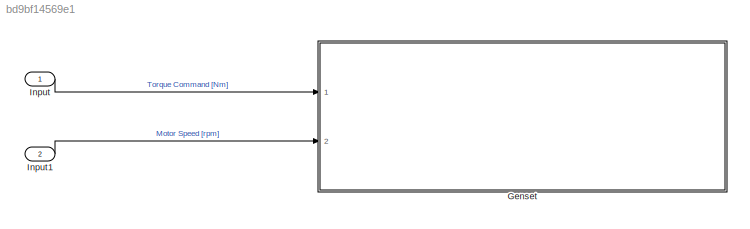
MODEL slx_bd9bf14569e1
KIND model
CONFIG AbsTol = auto
CONFIG EnableMultiTasking = off
CONFIG FixedStep = auto
CONFIG MaxStep = auto
CONFIG MinStep = auto
CONFIG RelTol = 1e-3
CONFIG SampleTimeConstraint = Unconstrained
CONFIG Solver = VariableStepAuto
CONFIG SolverName = VariableStepAuto
CONFIG StartTime = 0.0
CONFIG StopTime = tEnd
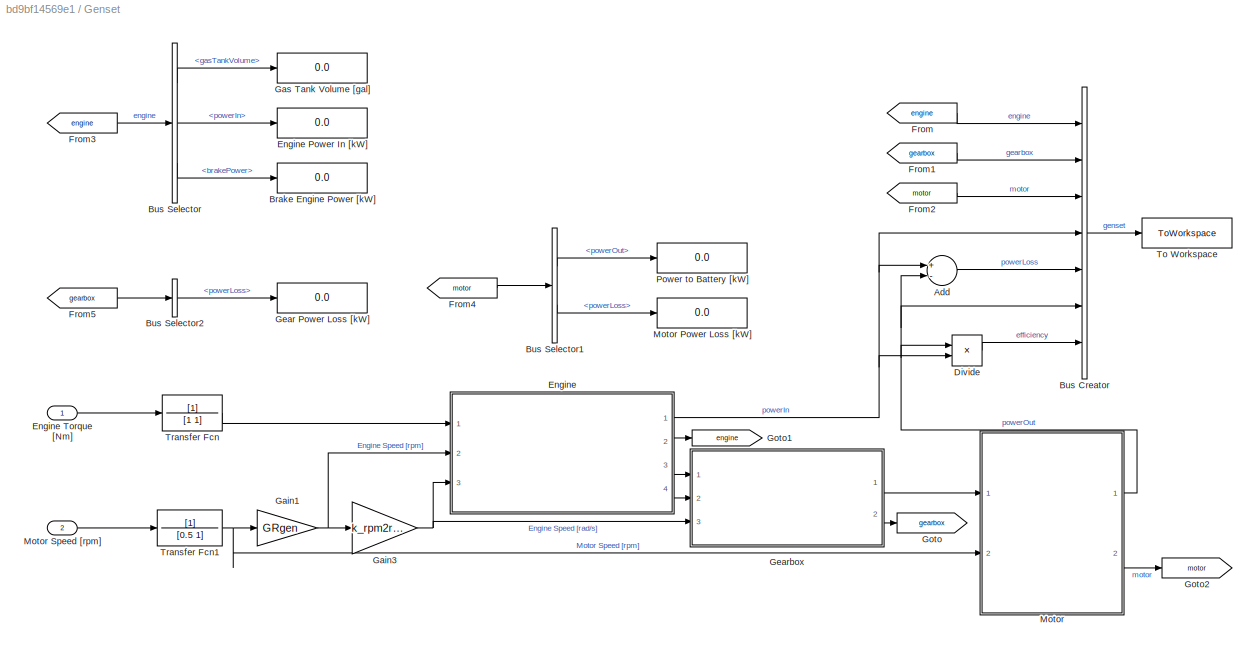
BLOCK [SubSystem] Genset
  Ports = [2]
  RequestExecContextInheritance = off
BLOCK [Sum] Genset/Add
  InputSameDT = off
  Inputs = +-
  OutDataTypeStr = Inherit: Inherit via internal rule
  Ports = [2, 1]
  SaturateOnIntegerOverflow = off
BLOCK [Display] Genset/Brake Engine Power [kW]
  Decimation = 1
  Ports = [1]
BLOCK [BusCreator] Genset/Bus Creator
  DisplayOption = bar
  InheritFromInputs = on
  Inputs = 7
  Ports = [7, 1]
BLOCK [BusSelector] Genset/Bus Selector
  OutputAsBus = off
  OutputSignals = gasTankVolume,powerIn,brakePower
  Ports = [1, 3]
BLOCK [BusSelector] Genset/Bus Selector1
  OutputAsBus = off
  OutputSignals = powerOut,powerLoss
  Ports = [1, 2]
BLOCK [BusSelector] Genset/Bus Selector2
  OutputAsBus = off
  OutputSignals = powerLoss
  Ports = [1, 1]
BLOCK [Product] Genset/Divide
  InputSameDT = off
  Inputs = */
  OutDataTypeStr = Inherit: Inherit via internal rule
  Ports = [2, 1]
  RndMeth = Floor
  SaturateOnIntegerOverflow = off
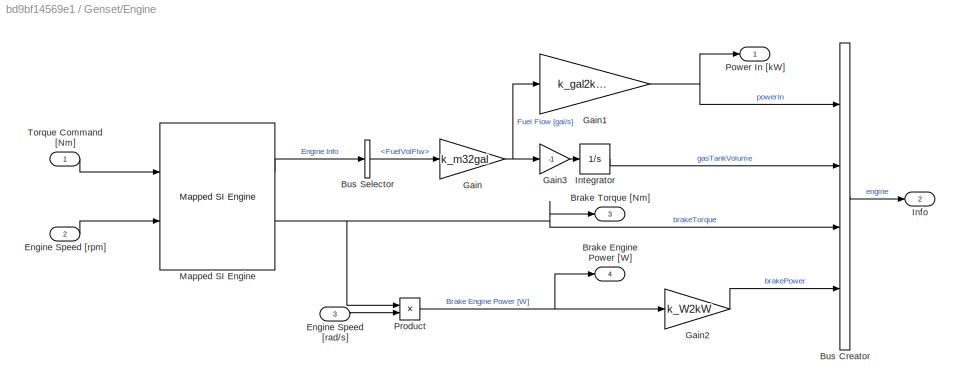
BLOCK [SubSystem] Genset/Engine
  Ports = [3, 4]
  RequestExecContextInheritance = off
BLOCK [Display] Genset/Engine Power In [kW]
  Decimation = 1
  Ports = [1]
BLOCK [Inport] Genset/Engine Torque [Nm]
  IconDisplay = Port number
BLOCK [Outport] Genset/Engine/Brake Engine Power [W]
  IconDisplay = Port number
  Port = 4
BLOCK [Outport] Genset/Engine/Brake Torque [Nm]
  IconDisplay = Port number
  Port = 3
BLOCK [BusCreator] Genset/Engine/Bus Creator
  DisplayOption = bar
  InheritFromInputs = on
  Inputs = 4
  Ports = [4, 1]
BLOCK [BusSelector] Genset/Engine/Bus Selector
  OutputAsBus = off
  OutputSignals = FuelVolFlw
  Ports = [1, 1]
BLOCK [Inport] Genset/Engine/Engine Speed [rad//s]
  IconDisplay = Port number
  Port = 3
BLOCK [Inport] Genset/Engine/Engine Speed [rpm]
  IconDisplay = Port number
  Port = 2
BLOCK [Gain] Genset/Engine/Gain
  Gain = k_m32gal
  OutDataTypeStr = Inherit: Inherit via internal rule
  ParamDataTypeStr = Inherit: Inherit via internal rule
  SaturateOnIntegerOverflow = off
BLOCK [Gain] Genset/Engine/Gain1
  Gain = k_gal2kWh*k_hr2s
  OutDataTypeStr = Inherit: Inherit via internal rule
  ParamDataTypeStr = Inherit: Inherit via internal rule
  SaturateOnIntegerOverflow = off
BLOCK [Gain] Genset/Engine/Gain2
  Gain = k_W2kW
  OutDataTypeStr = Inherit: Inherit via internal rule
  ParamDataTypeStr = Inherit: Inherit via internal rule
  SaturateOnIntegerOverflow = off
BLOCK [Gain] Genset/Engine/Gain3
  Gain = -1
  OutDataTypeStr = Inherit: Inherit via internal rule
  ParamDataTypeStr = Inherit: Inherit via internal rule
  SaturateOnIntegerOverflow = off
BLOCK [Outport] Genset/Engine/Info
  IconDisplay = Port number
  Port = 2
BLOCK [Integrator] Genset/Engine/Integrator
  InitialCondition = initialGasVolume
  Ports = [1, 1]
BLOCK [Reference] Genset/Engine/Mapped SI Engine  REF=autolibsharedmappedengines/Mapped SI Engine
  Ports = [2, 2]
  SourceBlock = autolibsharedmappedengines/Mapped SI Engine
  SourceProductBaseCode = PW
  SourceProductName = Powertrain Blockset
  SourceType = Mapped SI Engine
BLOCK [Outport] Genset/Engine/Power In [kW]
  IconDisplay = Port number
BLOCK [Product] Genset/Engine/Product
  InputSameDT = off
  OutDataTypeStr = Inherit: Inherit via internal rule
  Ports = [2, 1]
  RndMeth = Floor
  SaturateOnIntegerOverflow = off
BLOCK [Inport] Genset/Engine/Torque Command [Nm]
  IconDisplay = Port number
BLOCK [From] Genset/From
  GotoTag = engine
BLOCK [From] Genset/From1
  GotoTag = gearbox
BLOCK [From] Genset/From2
  GotoTag = motor
BLOCK [From] Genset/From3
  GotoTag = engine
BLOCK [From] Genset/From4
  GotoTag = motor
BLOCK [From] Genset/From5
  GotoTag = gearbox
BLOCK [Gain] Genset/Gain1
  Gain = GRgen
  OutDataTypeStr = Inherit: Inherit via internal rule
  ParamDataTypeStr = Inherit: Inherit via internal rule
  SaturateOnIntegerOverflow = off
BLOCK [Gain] Genset/Gain3
  Gain = k_rpm2rps
  OutDataTypeStr = Inherit: Inherit via internal rule
  ParamDataTypeStr = Inherit: Inherit via internal rule
  SaturateOnIntegerOverflow = off
BLOCK [Display] Genset/Gas Tank Volume [gal]
  Decimation = 1
  Ports = [1]
BLOCK [Display] Genset/Gear Power Loss [kW]
  Decimation = 1
  Ports = [1]
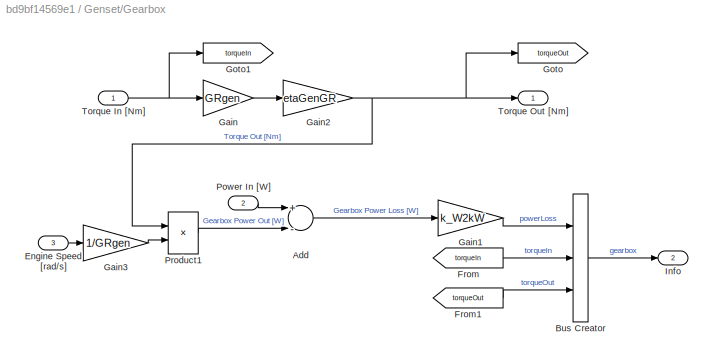
BLOCK [SubSystem] Genset/Gearbox
  Ports = [3, 2]
  RequestExecContextInheritance = off
BLOCK [Sum] Genset/Gearbox/Add
  InputSameDT = off
  Inputs = +-
  OutDataTypeStr = Inherit: Inherit via internal rule
  Ports = [2, 1]
  SaturateOnIntegerOverflow = off
BLOCK [BusCreator] Genset/Gearbox/Bus Creator
  DisplayOption = bar
  InheritFromInputs = on
  Inputs = 3
  Ports = [3, 1]
BLOCK [Inport] Genset/Gearbox/Engine Speed [rad//s]
  IconDisplay = Port number
  Port = 3
BLOCK [From] Genset/Gearbox/From
  GotoTag = torqueIn
BLOCK [From] Genset/Gearbox/From1
  GotoTag = torqueOut
BLOCK [Gain] Genset/Gearbox/Gain
  Gain = GRgen
  OutDataTypeStr = Inherit: Inherit via internal rule
  ParamDataTypeStr = Inherit: Inherit via internal rule
  SaturateOnIntegerOverflow = off
BLOCK [Gain] Genset/Gearbox/Gain1
  Gain = k_W2kW
  OutDataTypeStr = Inherit: Inherit via internal rule
  ParamDataTypeStr = Inherit: Inherit via internal rule
  SaturateOnIntegerOverflow = off
BLOCK [Gain] Genset/Gearbox/Gain2
  Gain = etaGenGR
  OutDataTypeStr = Inherit: Inherit via internal rule
  ParamDataTypeStr = Inherit: Inherit via internal rule
  SaturateOnIntegerOverflow = off
BLOCK [Gain] Genset/Gearbox/Gain3
  Gain = 1/GRgen
  OutDataTypeStr = Inherit: Inherit via internal rule
  ParamDataTypeStr = Inherit: Inherit via internal rule
  SaturateOnIntegerOverflow = off
BLOCK [Goto] Genset/Gearbox/Goto
  GotoTag = torqueOut
BLOCK [Goto] Genset/Gearbox/Goto1
  GotoTag = torqueIn
BLOCK [Outport] Genset/Gearbox/Info
  IconDisplay = Port number
  Port = 2
BLOCK [Inport] Genset/Gearbox/Power In [W]
  IconDisplay = Port number
  Port = 2
BLOCK [Product] Genset/Gearbox/Product1
  InputSameDT = off
  OutDataTypeStr = Inherit: Inherit via internal rule
  Ports = [2, 1]
  RndMeth = Floor
  SaturateOnIntegerOverflow = off
BLOCK [Inport] Genset/Gearbox/Torque In [Nm]
  IconDisplay = Port number
BLOCK [Outport] Genset/Gearbox/Torque Out [Nm]
  IconDisplay = Port number
BLOCK [Goto] Genset/Goto
  GotoTag = gearbox
BLOCK [Goto] Genset/Goto1
  GotoTag = engine
BLOCK [Goto] Genset/Goto2
  GotoTag = motor
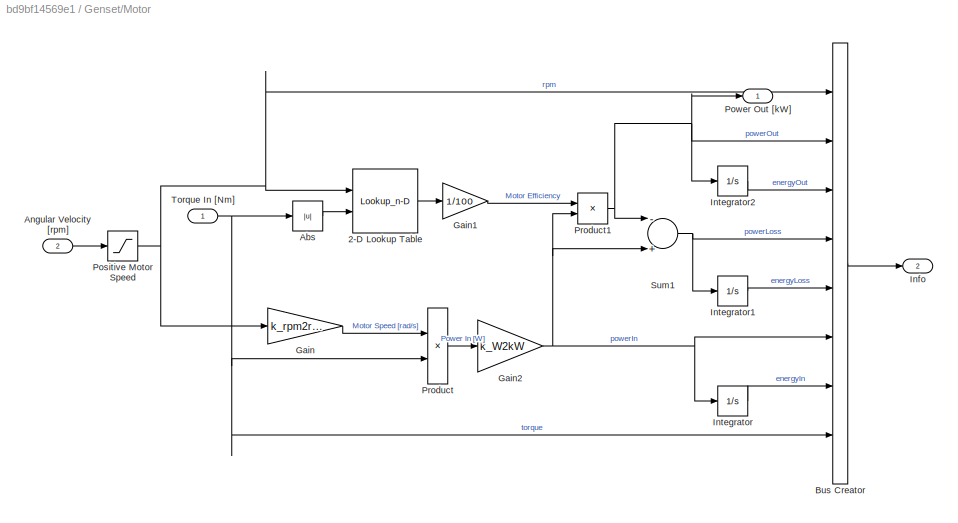
BLOCK [SubSystem] Genset/Motor
  Ports = [2, 2]
  RequestExecContextInheritance = off
BLOCK [Display] Genset/Motor Power Loss [kW]
  Decimation = 1
  Ports = [1]
BLOCK [Inport] Genset/Motor Speed [rpm]
  IconDisplay = Port number
  Port = 2
BLOCK [Lookup_n-D] Genset/Motor/2-D Lookup Table
  BreakpointsForDimension1 = genMotorData.w_eff_bp
  BreakpointsForDimension2 = genMotorData.T_eff_bp
  InternalRulePriority = Speed
  Ports = [2, 1]
  RndMeth = Simplest
  Table = genMotorData.efficiency_table
BLOCK [Abs] Genset/Motor/Abs
  SaturateOnIntegerOverflow = off
BLOCK [Inport] Genset/Motor/Angular Velocity [rpm]
  IconDisplay = Port number
  Port = 2
  VarSizeSig = No
BLOCK [BusCreator] Genset/Motor/Bus Creator
  DisplayOption = bar
  InheritFromInputs = on
  Inputs = 8
  Ports = [8, 1]
BLOCK [Gain] Genset/Motor/Gain
  Gain = k_rpm2rps
  OutDataTypeStr = Inherit: Inherit via internal rule
  ParamDataTypeStr = Inherit: Inherit via internal rule
  SaturateOnIntegerOverflow = off
BLOCK [Gain] Genset/Motor/Gain1
  Gain = 1/100
  OutDataTypeStr = Inherit: Inherit via internal rule
  ParamDataTypeStr = Inherit: Inherit via internal rule
  SaturateOnIntegerOverflow = off
BLOCK [Gain] Genset/Motor/Gain2
  Gain = k_W2kW
  OutDataTypeStr = Inherit: Inherit via internal rule
  ParamDataTypeStr = Inherit: Inherit via internal rule
  SaturateOnIntegerOverflow = off
BLOCK [Outport] Genset/Motor/Info
  IconDisplay = Port number
  Port = 2
BLOCK [Integrator] Genset/Motor/Integrator
  Ports = [1, 1]
BLOCK [Integrator] Genset/Motor/Integrator1
  Ports = [1, 1]
BLOCK [Integrator] Genset/Motor/Integrator2
  Ports = [1, 1]
BLOCK [Saturate] Genset/Motor/Positive Motor Speed
  InputPortMap = u0
  LowerLimit = 0
  Ports = [1, 1]
  UpperLimit = inf
BLOCK [Outport] Genset/Motor/Power Out [kW]
  IconDisplay = Port number
BLOCK [Product] Genset/Motor/Product
  InputSameDT = off
  OutDataTypeStr = Inherit: Inherit via internal rule
  Ports = [2, 1]
  RndMeth = Floor
  SaturateOnIntegerOverflow = off
BLOCK [Product] Genset/Motor/Product1
  InputSameDT = off
  OutDataTypeStr = Inherit: Inherit via internal rule
  Ports = [2, 1]
  RndMeth = Floor
  SaturateOnIntegerOverflow = off
BLOCK [Sum] Genset/Motor/Sum1
  InputSameDT = off
  Inputs = -+
  OutDataTypeStr = Inherit: Inherit via internal rule
  Ports = [2, 1]
  SaturateOnIntegerOverflow = off
BLOCK [Inport] Genset/Motor/Torque In [Nm]
  IconDisplay = Port number
  VarSizeSig = No
BLOCK [Display] Genset/Power to Battery [kW]
  Decimation = 1
  Ports = [1]
BLOCK [ToWorkspace] Genset/To Workspace
  FixptAsFi = on
  MaxDataPoints = inf
  Ports = [1]
  SampleTime = -1
  SaveFormat = Timeseries
  VariableName = genset
BLOCK [TransferFcn] Genset/Transfer Fcn
  Denominator = [1 1]
BLOCK [TransferFcn] Genset/Transfer Fcn1
  Denominator = [0.5 1]
BLOCK [Inport] Input
  IconDisplay = Port number
BLOCK [Inport] Input1
  IconDisplay = Port number
  Port = 2
LINE Genset/Add:1 -> Genset/Bus Creator:5
LINE Genset/Bus Creator:1 -> Genset/To Workspace:1
LINE Genset/Bus Selector1:1 -> Genset/Power to Battery [kW]:1
LINE Genset/Bus Selector1:2 -> Genset/Motor Power Loss [kW]:1
LINE Genset/Bus Selector2:1 -> Genset/Gear Power Loss [kW]:1
LINE Genset/Bus Selector:1 -> Genset/Gas Tank Volume [gal]:1
LINE Genset/Bus Selector:2 -> Genset/Engine Power In [kW]:1
LINE Genset/Bus Selector:3 -> Genset/Brake Engine Power [kW]:1
LINE Genset/Divide:1 -> Genset/Bus Creator:7
LINE Genset/Engine Torque [Nm]:1 -> Genset/Transfer Fcn:1
LINE Genset/Engine/Bus Creator:1 -> Genset/Engine/Info:1
LINE Genset/Engine/Bus Selector:1 -> Genset/Engine/Gain:1
LINE Genset/Engine/Engine Speed [rad//s]:1 -> Genset/Engine/Product:2
LINE Genset/Engine/Engine Speed [rpm]:1 -> Genset/Engine/Mapped SI Engine:2
NET Genset/Engine/Gain1:1 -> Genset/Engine/Bus Creator:1, Genset/Engine/Power In [kW]:1
LINE Genset/Engine/Gain2:1 -> Genset/Engine/Bus Creator:4
LINE Genset/Engine/Gain3:1 -> Genset/Engine/Integrator:1
NET Genset/Engine/Gain:1 -> Genset/Engine/Gain1:1, Genset/Engine/Gain3:1
LINE Genset/Engine/Integrator:1 -> Genset/Engine/Bus Creator:2
LINE Genset/Engine/Mapped SI Engine:1 -> Genset/Engine/Bus Selector:1
NET Genset/Engine/Mapped SI Engine:2 -> Genset/Engine/Brake Torque [Nm]:1, Genset/Engine/Bus Creator:3, Genset/Engine/Product:1
NET Genset/Engine/Product:1 -> Genset/Engine/Brake Engine Power [W]:1, Genset/Engine/Gain2:1
LINE Genset/Engine/Torque Command [Nm]:1 -> Genset/Engine/Mapped SI Engine:1
NET Genset/Engine:1 -> Genset/Add:1, Genset/Bus Creator:4, Genset/Divide:2
LINE Genset/Engine:2 -> Genset/Goto1:1
LINE Genset/Engine:3 -> Genset/Gearbox:1
LINE Genset/Engine:4 -> Genset/Gearbox:2
LINE Genset/From1:1 -> Genset/Bus Creator:2
LINE Genset/From2:1 -> Genset/Bus Creator:3
LINE Genset/From3:1 -> Genset/Bus Selector:1
LINE Genset/From4:1 -> Genset/Bus Selector1:1
LINE Genset/From5:1 -> Genset/Bus Selector2:1
LINE Genset/From:1 -> Genset/Bus Creator:1
NET Genset/Gain1:1 -> Genset/Engine:2, Genset/Gain3:1
NET Genset/Gain3:1 -> Genset/Engine:3, Genset/Gearbox:3
LINE Genset/Gearbox/Add:1 -> Genset/Gearbox/Gain1:1
LINE Genset/Gearbox/Bus Creator:1 -> Genset/Gearbox/Info:1
LINE Genset/Gearbox/Engine Speed [rad//s]:1 -> Genset/Gearbox/Gain3:1
LINE Genset/Gearbox/From1:1 -> Genset/Gearbox/Bus Creator:3
LINE Genset/Gearbox/From:1 -> Genset/Gearbox/Bus Creator:2
LINE Genset/Gearbox/Gain1:1 -> Genset/Gearbox/Bus Creator:1
NET Genset/Gearbox/Gain2:1 -> Genset/Gearbox/Goto:1, Genset/Gearbox/Product1:1, Genset/Gearbox/Torque Out [Nm]:1
LINE Genset/Gearbox/Gain3:1 -> Genset/Gearbox/Product1:2
LINE Genset/Gearbox/Gain:1 -> Genset/Gearbox/Gain2:1
LINE Genset/Gearbox/Power In [W]:1 -> Genset/Gearbox/Add:1
LINE Genset/Gearbox/Product1:1 -> Genset/Gearbox/Add:2
NET Genset/Gearbox/Torque In [Nm]:1 -> Genset/Gearbox/Gain:1, Genset/Gearbox/Goto1:1
LINE Genset/Gearbox:1 -> Genset/Motor:1
LINE Genset/Gearbox:2 -> Genset/Goto:1
LINE Genset/Motor Speed [rpm]:1 -> Genset/Transfer Fcn1:1
LINE Genset/Motor/2-D Lookup Table:1 -> Genset/Motor/Gain1:1
LINE Genset/Motor/Abs:1 -> Genset/Motor/2-D Lookup Table:2
LINE Genset/Motor/Angular Velocity [rpm]:1 -> Genset/Motor/Positive Motor Speed:1
LINE Genset/Motor/Bus Creator:1 -> Genset/Motor/Info:1
LINE Genset/Motor/Gain1:1 -> Genset/Motor/Product1:1
NET Genset/Motor/Gain2:1 -> Genset/Motor/Bus Creator:6, Genset/Motor/Integrator:1, Genset/Motor/Product1:2, Genset/Motor/Sum1:2
LINE Genset/Motor/Gain:1 -> Genset/Motor/Product:1
LINE Genset/Motor/Integrator1:1 -> Genset/Motor/Bus Creator:5
LINE Genset/Motor/Integrator2:1 -> Genset/Motor/Bus Creator:3
LINE Genset/Motor/Integrator:1 -> Genset/Motor/Bus Creator:7
NET Genset/Motor/Positive Motor Speed:1 -> Genset/Motor/2-D Lookup Table:1, Genset/Motor/Bus Creator:1, Genset/Motor/Gain:1
NET Genset/Motor/Product1:1 -> Genset/Motor/Bus Creator:2, Genset/Motor/Integrator2:1, Genset/Motor/Power Out [kW]:1, Genset/Motor/Sum1:1
LINE Genset/Motor/Product:1 -> Genset/Motor/Gain2:1
NET Genset/Motor/Sum1:1 -> Genset/Motor/Bus Creator:4, Genset/Motor/Integrator1:1
NET Genset/Motor/Torque In [Nm]:1 -> Genset/Motor/Abs:1, Genset/Motor/Bus Creator:8, Genset/Motor/Product:2
NET Genset/Motor:1 -> Genset/Add:2, Genset/Bus Creator:6, Genset/Divide:1
LINE Genset/Motor:2 -> Genset/Goto2:1
NET Genset/Transfer Fcn1:1 -> Genset/Gain1:1, Genset/Motor:2
LINE Genset/Transfer Fcn:1 -> Genset/Engine:1
LINE Input1:1 -> Genset:2
LINE Input:1 -> Genset:1
note: NET lines group one-source signal fan-out (src -> all destinations, sorted); 1:1 wires keep LINE
